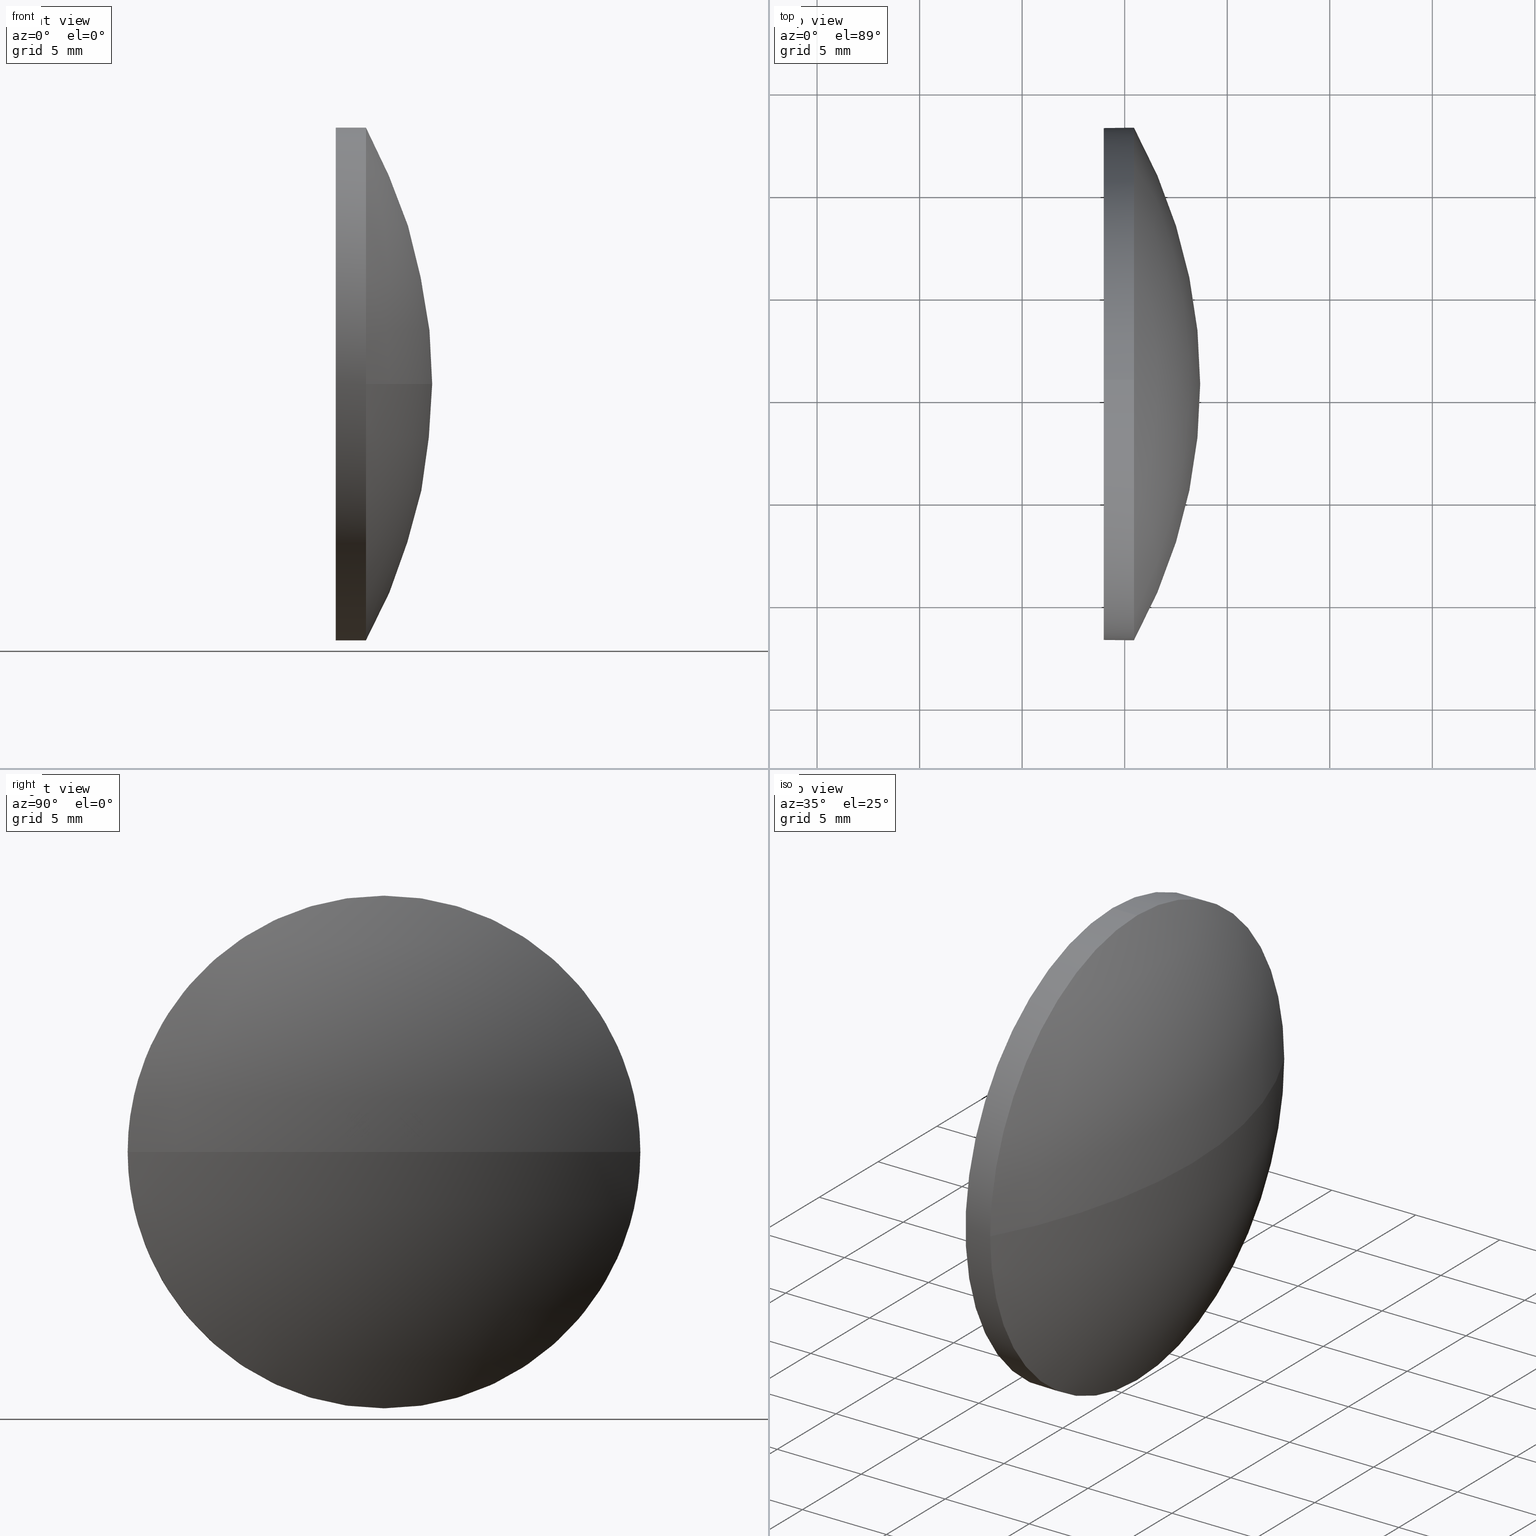
[diagram: canonical four-view strip — front | top / right | iso, engineering-drawing reading convention]
A machine part, canonical four-view strip (front | top / right | iso — engineering-drawing reading convention). The complete STEP part file that produces these views, byte-faithful:
ISO-10303-21;
HEADER;
FILE_DESCRIPTION (( 'STEP AP214' ),
    '1' );
FILE_NAME ('100040.STEP',
    '2019-04-25T08:53:57',
    ( '' ),
    ( '' ),
    'SwSTEP 2.0',
    'SolidWorks 2016',
    '' );
FILE_SCHEMA (( 'AUTOMOTIVE_DESIGN' ));
ENDSEC;

DATA;
#1 = EDGE_LOOP ( 'NONE', ( #75, #130, #57, #168 ) ) ;
#2 = ORIENTED_EDGE ( 'NONE', *, *, #121, .F. ) ;
#3 = MECHANICAL_DESIGN_GEOMETRIC_PRESENTATION_REPRESENTATION (  '', ( #163 ), #178 ) ;
#4 = CARTESIAN_POINT ( 'NONE',  ( 535.4521553744855300, 140.6810653436631100, 0.0000000000000000000 ) ) ;
#5 = LINE ( 'NONE', #7, #134 ) ;
#6 = DIRECTION ( 'NONE',  ( -0.0000000000000000000, 0.0000000000000000000, 1.000000000000000000 ) ) ;
#7 = CARTESIAN_POINT ( 'NONE',  ( 529.2401241325956100, 140.6810653436631100, 12.49999999999998400 ) ) ;
#8 = VERTEX_POINT ( 'NONE', #148 ) ;
#9 = CARTESIAN_POINT ( 'NONE',  ( 533.9821553744856100, 140.6810653436631100, 0.0000000000000000000 ) ) ;
#10 = CARTESIAN_POINT ( 'NONE',  ( 538.6821553744855500, 140.6810653436630200, 0.0000000000000000000 ) ) ;
#11 =( LENGTH_UNIT ( ) NAMED_UNIT ( * ) SI_UNIT ( .MILLI., .METRE. ) );
#12 =( NAMED_UNIT ( * ) SI_UNIT ( $, .STERADIAN. ) SOLID_ANGLE_UNIT ( ) );
#13 = DIRECTION ( 'NONE',  ( -1.000000000000000000, -0.0000000000000000000, -0.0000000000000000000 ) ) ;
#14 = EDGE_CURVE ( 'NONE', #124, #115, #74, .T. ) ;
#15 = ORIENTED_EDGE ( 'NONE', *, *, #131, .F. ) ;
#16 = ORIENTED_EDGE ( 'NONE', *, *, #90, .F. ) ;
#17 =( GEOMETRIC_REPRESENTATION_CONTEXT ( 3 ) GLOBAL_UNCERTAINTY_ASSIGNED_CONTEXT ( ( #140 ) ) GLOBAL_UNIT_ASSIGNED_CONTEXT ( ( #65, #156, #38 ) ) REPRESENTATION_CONTEXT ( 'NONE', 'WORKASPACE' ) );
#18 = FACE_OUTER_BOUND ( 'NONE', #1, .T. ) ;
#19 = CARTESIAN_POINT ( 'NONE',  ( 512.8798488729374900, 140.6810653436630200, 0.0000000000000000000 ) ) ;
#20 = AXIS2_PLACEMENT_3D ( 'NONE', #35, #179, #55 ) ;
#21 = DIRECTION ( 'NONE',  ( 1.000000000000000000, 0.0000000000000000000, 0.0000000000000000000 ) ) ;
#22 = EDGE_CURVE ( 'NONE', #40, #8, #107, .T. ) ;
#23 = APPLICATION_PROTOCOL_DEFINITION ( 'draft international standard', 'automotive_design', 1998, #158 ) ;
#24 =( NAMED_UNIT ( * ) SI_UNIT ( $, .STERADIAN. ) SOLID_ANGLE_UNIT ( ) );
#25 = DIRECTION ( 'NONE',  ( -1.000000000000000000, -0.0000000000000000000, -0.0000000000000000000 ) ) ;
#26 = DIRECTION ( 'NONE',  ( -1.000000000000000000, -0.0000000000000000000, -0.0000000000000000000 ) ) ;
#27 = STYLED_ITEM ( 'NONE', ( #101 ), #155 ) ;
#28 = ADVANCED_FACE ( 'NONE', ( #176 ), #102, .T. ) ;
#29 = ORIENTED_EDGE ( 'NONE', *, *, #14, .F. ) ;
#30 =( GEOMETRIC_REPRESENTATION_CONTEXT ( 3 ) GLOBAL_UNCERTAINTY_ASSIGNED_CONTEXT ( ( #116 ) ) GLOBAL_UNIT_ASSIGNED_CONTEXT ( ( #42, #54, #24 ) ) REPRESENTATION_CONTEXT ( 'NONE', 'WORKASPACE' ) );
#31 = COLOUR_RGB ( '',1.000000000000000000, 1.000000000000000000, 1.000000000000000000 ) ;
#32 = EDGE_CURVE ( 'NONE', #93, #40, #139, .T. ) ;
#33 = ORIENTED_EDGE ( 'NONE', *, *, #100, .F. ) ;
#34 = PRODUCT_DEFINITION_FORMATION_WITH_SPECIFIED_SOURCE ( '�κ�', '', #41, .NOT_KNOWN. ) ;
#35 = CARTESIAN_POINT ( 'NONE',  ( 529.2401241325956100, 140.6810653436631100, 0.0000000000000000000 ) ) ;
#36 = ORIENTED_EDGE ( 'NONE', *, *, #121, .T. ) ;
#37 = CARTESIAN_POINT ( 'NONE',  ( 535.4521553744855300, 128.1810653436630800, -1.530808498934185000E-015 ) ) ;
#38 =( NAMED_UNIT ( * ) SI_UNIT ( $, .STERADIAN. ) SOLID_ANGLE_UNIT ( ) );
#39 = PRODUCT_DEFINITION ( 'δ֪', '', #34, #109 ) ;
#40 = VERTEX_POINT ( 'NONE', #37 ) ;
#41 = PRODUCT ( '100040', '100040', '', ( #185 ) ) ;
#42 =( LENGTH_UNIT ( ) NAMED_UNIT ( * ) SI_UNIT ( .MILLI., .METRE. ) );
#43 = DIRECTION ( 'NONE',  ( 0.0000000000000000000, 0.0000000000000000000, 1.000000000000000000 ) ) ;
#44 = AXIS2_PLACEMENT_3D ( 'NONE', #154, #128, #141 ) ;
#45 = AXIS2_PLACEMENT_3D ( 'NONE', #4, #52, #50 ) ;
#46 = EDGE_LOOP ( 'NONE', ( #29, #144, #147, #2 ) ) ;
#47 = AXIS2_PLACEMENT_3D ( 'NONE', #126, #82, #43 ) ;
#48 = VERTEX_POINT ( 'NONE', #118 ) ;
#49 = ORIENTED_EDGE ( 'NONE', *, *, #32, .T. ) ;
#50 = DIRECTION ( 'NONE',  ( 0.0000000000000000000, 0.0000000000000000000, 1.000000000000000000 ) ) ;
#51 = CIRCLE ( 'NONE', #47, 12.49999999999998400 ) ;
#52 = DIRECTION ( 'NONE',  ( -1.000000000000000000, -0.0000000000000000000, -0.0000000000000000000 ) ) ;
#53 = ORIENTED_EDGE ( 'NONE', *, *, #71, .T. ) ;
#54 =( NAMED_UNIT ( * ) PLANE_ANGLE_UNIT ( ) SI_UNIT ( $, .RADIAN. ) );
#55 = DIRECTION ( 'NONE',  ( 0.0000000000000000000, 0.0000000000000000000, 1.000000000000000000 ) ) ;
#56 = ADVANCED_BREP_SHAPE_REPRESENTATION ( '100040', ( #155, #44 ), #17 ) ;
#57 = ORIENTED_EDGE ( 'NONE', *, *, #71, .F. ) ;
#58 = ADVANCED_FACE ( 'NONE', ( #18 ), #68, .T. ) ;
#59 = AXIS2_PLACEMENT_3D ( 'NONE', #19, #136, #62 ) ;
#60 = ORIENTED_EDGE ( 'NONE', *, *, #22, .T. ) ;
#61 = PRESENTATION_LAYER_ASSIGNMENT (  '', '', ( #27 ) ) ;
#62 = DIRECTION ( 'NONE',  ( 0.0000000000000000000, 1.000000000000000000, 0.0000000000000000000 ) ) ;
#63 = CARTESIAN_POINT ( 'NONE',  ( 535.4521553744855300, 140.6810653436631100, 0.0000000000000000000 ) ) ;
#64 = DIRECTION ( 'NONE',  ( -1.000000000000000000, -0.0000000000000000000, -0.0000000000000000000 ) ) ;
#65 =( LENGTH_UNIT ( ) NAMED_UNIT ( * ) SI_UNIT ( .MILLI., .METRE. ) );
#66 = FILL_AREA_STYLE ('',( #70 ) ) ;
#67 = PRODUCT_RELATED_PRODUCT_CATEGORY ( 'part', '', ( #41 ) ) ;
#68 = SPHERICAL_SURFACE ( 'NONE', #59, 25.80230650154806300 ) ;
#69 = SURFACE_STYLE_USAGE ( .BOTH. , #111 ) ;
#70 = FILL_AREA_STYLE_COLOUR ( '', #86 ) ;
#71 = EDGE_CURVE ( 'NONE', #8, #115, #173, .T. ) ;
#72 = CARTESIAN_POINT ( 'NONE',  ( 512.8798488729374900, 140.6810653436630200, 0.0000000000000000000 ) ) ;
#73 = VECTOR ( 'NONE', #26, 1000.000000000000000 ) ;
#74 = CIRCLE ( 'NONE', #110, 25.80230650154802400 ) ;
#75 = ORIENTED_EDGE ( 'NONE', *, *, #177, .F. ) ;
#76 = EDGE_LOOP ( 'NONE', ( #15, #49, #60, #159, #33 ) ) ;
#77 = DIRECTION ( 'NONE',  ( -1.000000000000000000, -0.0000000000000000000, -0.0000000000000000000 ) ) ;
#78 = EDGE_CURVE ( 'NONE', #8, #48, #5, .T. ) ;
#79 = FACE_OUTER_BOUND ( 'NONE', #83, .T. ) ;
#80 = CARTESIAN_POINT ( 'NONE',  ( 535.4521553744855300, 140.6810653436631100, -12.49999999999998400 ) ) ;
#81 = AXIS2_PLACEMENT_3D ( 'NONE', #9, #171, #138 ) ;
#82 = DIRECTION ( 'NONE',  ( -1.000000000000000000, -0.0000000000000000000, -0.0000000000000000000 ) ) ;
#83 = EDGE_LOOP ( 'NONE', ( #36, #114, #16, #183, #53 ) ) ;
#84 = FILL_AREA_STYLE ('',( #182 ) ) ;
#85 =( NAMED_UNIT ( * ) PLANE_ANGLE_UNIT ( ) SI_UNIT ( $, .RADIAN. ) );
#86 = COLOUR_RGB ( '',1.000000000000000000, 1.000000000000000000, 1.000000000000000000 ) ;
#87 = ORIENTED_EDGE ( 'NONE', *, *, #90, .T. ) ;
#88 = ADVANCED_FACE ( 'NONE', ( #165 ), #149, .F. ) ;
#89 = UNCERTAINTY_MEASURE_WITH_UNIT (LENGTH_MEASURE( 1.000000000000000100E-005 ), #11, 'distance_accuracy_value', 'NONE');
#90 = EDGE_CURVE ( 'NONE', #48, #97, #127, .T. ) ;
#91 = CIRCLE ( 'NONE', #175, 12.49999999999998400 ) ;
#92 = ORIENTED_EDGE ( 'NONE', *, *, #100, .T. ) ;
#93 = VERTEX_POINT ( 'NONE', #80 ) ;
#94 = SURFACE_STYLE_USAGE ( .BOTH. , #106 ) ;
#95 = DIRECTION ( 'NONE',  ( 0.0000000000000000000, 0.0000000000000000000, 1.000000000000000000 ) ) ;
#96 = APPLICATION_CONTEXT ( 'automotive_design' ) ;
#97 = VERTEX_POINT ( 'NONE', #151 ) ;
#98 = CARTESIAN_POINT ( 'NONE',  ( 529.2401241325956100, 140.6810653436631100, 0.0000000000000000000 ) ) ;
#99 = ADVANCED_FACE ( 'NONE', ( #170 ), #142, .T. ) ;
#100 = EDGE_CURVE ( 'NONE', #97, #48, #91, .T. ) ;
#101 = PRESENTATION_STYLE_ASSIGNMENT (( #94 ) ) ;
#102 = SPHERICAL_SURFACE ( 'NONE', #150, 25.80230650154806300 ) ;
#103 = CARTESIAN_POINT ( 'NONE',  ( 533.9821553744856100, 140.6810653436631100, 0.0000000000000000000 ) ) ;
#104 = CARTESIAN_POINT ( 'NONE',  ( 512.8798488729374900, 140.6810653436630200, 0.0000000000000000000 ) ) ;
#105 = LINE ( 'NONE', #125, #73 ) ;
#106 = SURFACE_SIDE_STYLE ('',( #181 ) ) ;
#107 = CIRCLE ( 'NONE', #132, 12.49999999999998400 ) ;
#108 = CARTESIAN_POINT ( 'NONE',  ( 535.4521553744855300, 153.1810653436630500, 0.0000000000000000000 ) ) ;
#109 = PRODUCT_DEFINITION_CONTEXT ( 'detailed design', #158, 'design' ) ;
#110 = AXIS2_PLACEMENT_3D ( 'NONE', #122, #6, #21 ) ;
#111 = SURFACE_SIDE_STYLE ('',( #112 ) ) ;
#112 = SURFACE_STYLE_FILL_AREA ( #66 ) ;
#113 = EDGE_LOOP ( 'NONE', ( #87, #92 ) ) ;
#114 = ORIENTED_EDGE ( 'NONE', *, *, #131, .T. ) ;
#115 = VERTEX_POINT ( 'NONE', #108 ) ;
#116 = UNCERTAINTY_MEASURE_WITH_UNIT (LENGTH_MEASURE( 1.000000000000000100E-005 ), #42, 'distance_accuracy_value', 'NONE');
#117 = DIRECTION ( 'NONE',  ( 0.0000000000000000000, 1.000000000000000000, 0.0000000000000000000 ) ) ;
#118 = CARTESIAN_POINT ( 'NONE',  ( 533.9821553744856100, 140.6810653436631100, 12.49999999999998400 ) ) ;
#119 = DIRECTION ( 'NONE',  ( 0.0000000000000000000, 0.0000000000000000000, -1.000000000000000000 ) ) ;
#120 = DIRECTION ( 'NONE',  ( -1.000000000000000000, -0.0000000000000000000, -0.0000000000000000000 ) ) ;
#121 = EDGE_CURVE ( 'NONE', #115, #93, #51, .T. ) ;
#122 = CARTESIAN_POINT ( 'NONE',  ( 512.8798488729374900, 140.6810653436630200, 0.0000000000000000000 ) ) ;
#123 = CARTESIAN_POINT ( 'NONE',  ( 533.9821553744856100, 140.6810653436631100, 0.0000000000000000000 ) ) ;
#124 = VERTEX_POINT ( 'NONE', #10 ) ;
#125 = CARTESIAN_POINT ( 'NONE',  ( 529.2401241325956100, 140.6810653436631100, -12.49999999999998400 ) ) ;
#126 = CARTESIAN_POINT ( 'NONE',  ( 535.4521553744855300, 140.6810653436631100, 0.0000000000000000000 ) ) ;
#127 = CIRCLE ( 'NONE', #81, 12.49999999999998400 ) ;
#128 = DIRECTION ( 'NONE',  ( 0.0000000000000000000, 0.0000000000000000000, 1.000000000000000000 ) ) ;
#129 = CIRCLE ( 'NONE', #172, 25.80230650154804900 ) ;
#130 = ORIENTED_EDGE ( 'NONE', *, *, #14, .T. ) ;
#131 = EDGE_CURVE ( 'NONE', #93, #97, #105, .T. ) ;
#132 = AXIS2_PLACEMENT_3D ( 'NONE', #133, #64, #167 ) ;
#133 = CARTESIAN_POINT ( 'NONE',  ( 535.4521553744855300, 140.6810653436631100, 0.0000000000000000000 ) ) ;
#134 = VECTOR ( 'NONE', #77, 1000.000000000000000 ) ;
#135 = DIRECTION ( 'NONE',  ( 0.0000000000000000000, 0.0000000000000000000, 1.000000000000000000 ) ) ;
#136 = DIRECTION ( 'NONE',  ( -0.0000000000000000000, 0.0000000000000000000, -1.000000000000000000 ) ) ;
#137 = DIRECTION ( 'NONE',  ( 0.0000000000000000000, 1.000000000000000000, 1.224646799147353900E-016 ) ) ;
#138 = DIRECTION ( 'NONE',  ( 0.0000000000000000000, 0.0000000000000000000, 1.000000000000000000 ) ) ;
#139 = CIRCLE ( 'NONE', #45, 12.49999999999998400 ) ;
#140 = UNCERTAINTY_MEASURE_WITH_UNIT (LENGTH_MEASURE( 1.000000000000000100E-005 ), #65, 'distance_accuracy_value', 'NONE');
#141 = DIRECTION ( 'NONE',  ( 1.000000000000000000, 0.0000000000000000000, 0.0000000000000000000 ) ) ;
#142 = CYLINDRICAL_SURFACE ( 'NONE', #20, 12.49999999999998400 ) ;
#143 = AXIS2_PLACEMENT_3D ( 'NONE', #63, #120, #135 ) ;
#144 = ORIENTED_EDGE ( 'NONE', *, *, #177, .T. ) ;
#145 = PRESENTATION_LAYER_ASSIGNMENT (  '', '', ( #163 ) ) ;
#146 = AXIS2_PLACEMENT_3D ( 'NONE', #103, #166, #119 ) ;
#147 = ORIENTED_EDGE ( 'NONE', *, *, #32, .F. ) ;
#148 = CARTESIAN_POINT ( 'NONE',  ( 535.4521553744855300, 140.6810653436631100, 12.49999999999998400 ) ) ;
#149 = PLANE ( 'NONE',  #146 ) ;
#150 = AXIS2_PLACEMENT_3D ( 'NONE', #104, #164, #117 ) ;
#151 = CARTESIAN_POINT ( 'NONE',  ( 533.9821553744856100, 140.6810653436631100, -12.49999999999998400 ) ) ;
#152 = DIRECTION ( 'NONE',  ( 0.0000000000000000000, 1.224646799147353200E-016, -1.000000000000000000 ) ) ;
#153 = SHAPE_DEFINITION_REPRESENTATION ( #174, #56 ) ;
#154 = CARTESIAN_POINT ( 'NONE',  ( 0.0000000000000000000, 0.0000000000000000000, 0.0000000000000000000 ) ) ;
#155 = MANIFOLD_SOLID_BREP ( '��ת1', #162 ) ;
#156 =( NAMED_UNIT ( * ) PLANE_ANGLE_UNIT ( ) SI_UNIT ( $, .RADIAN. ) );
#157 = DIRECTION ( 'NONE',  ( 0.0000000000000000000, 0.0000000000000000000, 1.000000000000000000 ) ) ;
#158 = APPLICATION_CONTEXT ( 'automotive_design' ) ;
#159 = ORIENTED_EDGE ( 'NONE', *, *, #78, .T. ) ;
#160 = PRESENTATION_STYLE_ASSIGNMENT (( #69 ) ) ;
#161 = ADVANCED_FACE ( 'NONE', ( #79 ), #180, .T. ) ;
#162 = CLOSED_SHELL ( 'NONE', ( #161, #28, #58, #99, #88 ) ) ;
#163 = STYLED_ITEM ( 'NONE', ( #160 ), #56 ) ;
#164 = DIRECTION ( 'NONE',  ( -0.0000000000000000000, 0.0000000000000000000, -1.000000000000000000 ) ) ;
#165 = FACE_OUTER_BOUND ( 'NONE', #113, .T. ) ;
#166 = DIRECTION ( 'NONE',  ( 1.000000000000000000, 0.0000000000000000000, 0.0000000000000000000 ) ) ;
#167 = DIRECTION ( 'NONE',  ( 0.0000000000000000000, 0.0000000000000000000, 1.000000000000000000 ) ) ;
#168 = ORIENTED_EDGE ( 'NONE', *, *, #22, .F. ) ;
#169 = MECHANICAL_DESIGN_GEOMETRIC_PRESENTATION_REPRESENTATION (  '', ( #27 ), #30 ) ;
#170 = FACE_OUTER_BOUND ( 'NONE', #76, .T. ) ;
#171 = DIRECTION ( 'NONE',  ( -1.000000000000000000, -0.0000000000000000000, -0.0000000000000000000 ) ) ;
#172 = AXIS2_PLACEMENT_3D ( 'NONE', #72, #152, #137 ) ;
#173 = CIRCLE ( 'NONE', #143, 12.49999999999998400 ) ;
#174 = PRODUCT_DEFINITION_SHAPE ( 'NONE', 'NONE',  #39 ) ;
#175 = AXIS2_PLACEMENT_3D ( 'NONE', #123, #13, #95 ) ;
#176 = FACE_OUTER_BOUND ( 'NONE', #46, .T. ) ;
#177 = EDGE_CURVE ( 'NONE', #124, #40, #129, .T. ) ;
#178 =( GEOMETRIC_REPRESENTATION_CONTEXT ( 3 ) GLOBAL_UNCERTAINTY_ASSIGNED_CONTEXT ( ( #89 ) ) GLOBAL_UNIT_ASSIGNED_CONTEXT ( ( #11, #85, #12 ) ) REPRESENTATION_CONTEXT ( 'NONE', 'WORKASPACE' ) );
#179 = DIRECTION ( 'NONE',  ( -1.000000000000000000, -0.0000000000000000000, -0.0000000000000000000 ) ) ;
#180 = CYLINDRICAL_SURFACE ( 'NONE', #184, 12.49999999999998400 ) ;
#181 = SURFACE_STYLE_FILL_AREA ( #84 ) ;
#182 = FILL_AREA_STYLE_COLOUR ( '', #31 ) ;
#183 = ORIENTED_EDGE ( 'NONE', *, *, #78, .F. ) ;
#184 = AXIS2_PLACEMENT_3D ( 'NONE', #98, #25, #157 ) ;
#185 = PRODUCT_CONTEXT ( 'NONE', #96, 'mechanical' ) ;
#186 = APPLICATION_PROTOCOL_DEFINITION ( 'draft international standard', 'automotive_design', 1998, #96 ) ;
ENDSEC;
END-ISO-10303-21;
